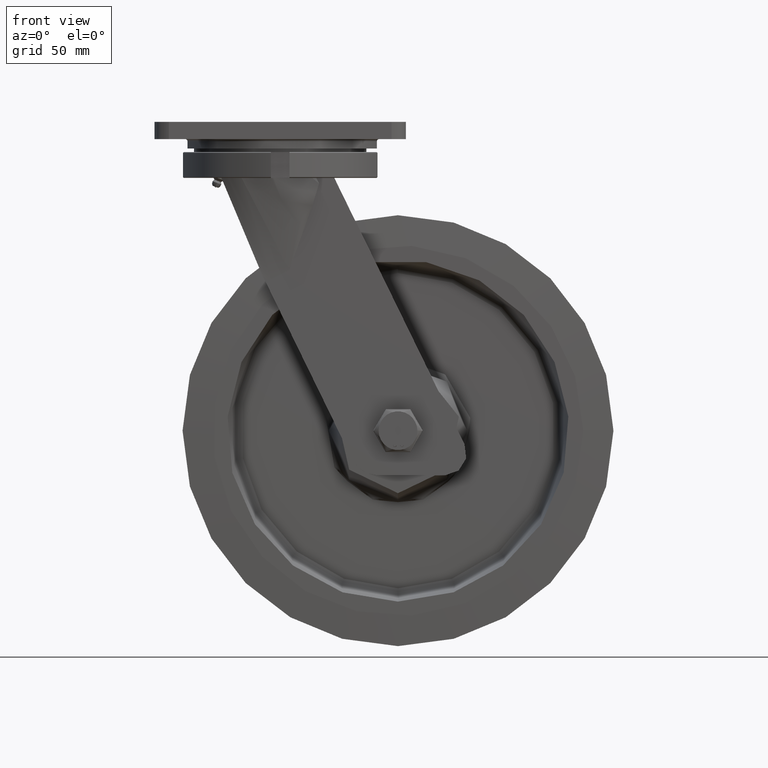
[diagram: clean part render]
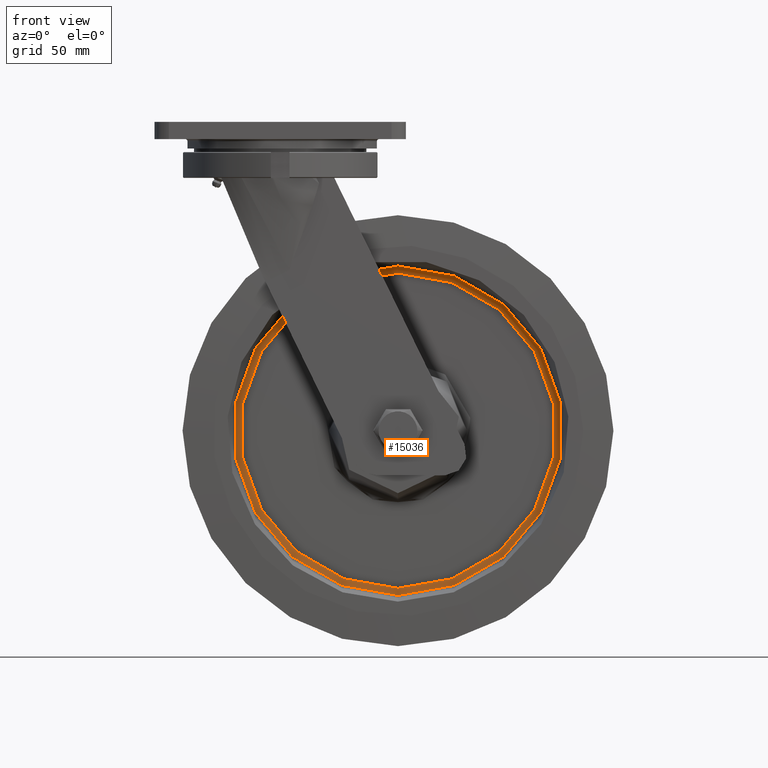
[diagram: same view with one face highlighted and labeled with its STEP entity id]
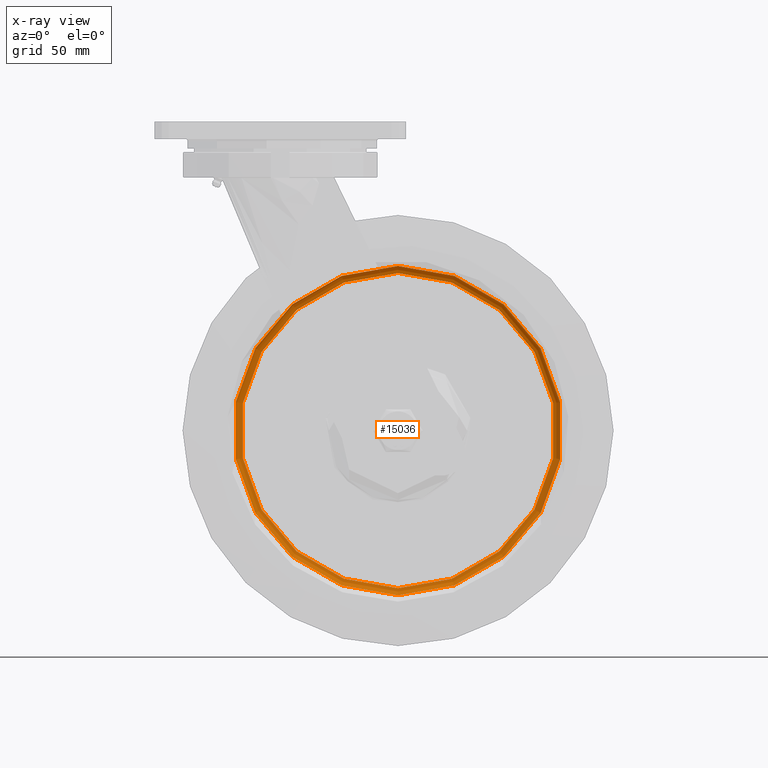
[diagram: x-ray of the same camera — body ghosted, the highlighted face saturated]
A machine part, front view. The second image highlights one B-rep face of the part: STEP entity #15036.
The next image is the same camera in x-ray: the body ghosted, the highlighted face saturated — about 0% of this face is hidden behind the body in this view.
In plain terms, the highlighted toroidal blend (fillet) surface has major radius 109.71 mm and minor (blend) radius 5 mm.
Its self-contained STEP definition (entity closure, byte-faithful):
#1010=TOROIDAL_SURFACE('',#16330,109.710405216167,4.99999999999999);
#1390=FACE_OUTER_BOUND('',#2309,.T.);
#2309=EDGE_LOOP('',(#11557,#11558,#11559,#11560,#11561));
#3172=CIRCLE('',#16331,109.710405216167);
#3173=CIRCLE('',#16332,4.99999999999999);
#3174=CIRCLE('',#16333,114.65226370442);
#3175=CIRCLE('',#16334,114.65226370442);
#6576=VERTEX_POINT('',#44139);
#6577=VERTEX_POINT('',#44141);
#6578=VERTEX_POINT('',#44143);
#8382=EDGE_CURVE('',#6576,#6576,#3172,.T.);
#8383=EDGE_CURVE('',#6576,#6577,#3173,.T.);
#8384=EDGE_CURVE('',#6577,#6578,#3174,.T.);
#8385=EDGE_CURVE('',#6578,#6577,#3175,.T.);
#11557=ORIENTED_EDGE('',*,*,#8382,.F.);
#11558=ORIENTED_EDGE('',*,*,#8383,.T.);
#11559=ORIENTED_EDGE('',*,*,#8384,.T.);
#11560=ORIENTED_EDGE('',*,*,#8385,.T.);
#11561=ORIENTED_EDGE('',*,*,#8383,.F.);
#15036=ADVANCED_FACE('',(#1390),#1010,.F.);
#16330=AXIS2_PLACEMENT_3D('',#44138,#18652,#18653);
#16331=AXIS2_PLACEMENT_3D('',#44140,#18654,#18655);
#16332=AXIS2_PLACEMENT_3D('',#44142,#18656,#18657);
#16333=AXIS2_PLACEMENT_3D('',#44144,#18658,#18659);
#16334=AXIS2_PLACEMENT_3D('',#44145,#18660,#18661);
#18652=DIRECTION('center_axis',(3.49148336110938E-15,-1.,0.));
#18653=DIRECTION('ref_axis',(0.,0.,-1.));
#18654=DIRECTION('center_axis',(3.49148336110938E-15,-1.,0.));
#18655=DIRECTION('ref_axis',(0.,0.,1.));
#18656=DIRECTION('center_axis',(1.,3.49148336110938E-15,1.22464679914735E-16));
#18657=DIRECTION('ref_axis',(-1.22464679914735E-16,0.,1.));
#18658=DIRECTION('center_axis',(3.49148336110938E-15,-1.,0.));
#18659=DIRECTION('ref_axis',(0.,0.,1.));
#18660=DIRECTION('center_axis',(3.49148336110938E-15,-1.,0.));
#18661=DIRECTION('ref_axis',(0.,0.,1.));
#44138=CARTESIAN_POINT('Origin',(4.18537275150012E-14,-10.,0.));
#44139=CARTESIAN_POINT('',(1.09606610513407E-14,-5.00000000000005,109.710405216167));
#44140=CARTESIAN_POINT('Origin',(2.43963107094543E-14,-5.00000000000005,
0.));
#44141=CARTESIAN_POINT('',(2.51583490951408E-14,-9.23971407873034,114.65226370442));
#44142=CARTESIAN_POINT('Origin',(2.84180778568874E-14,-10.,109.710405216167));
#44143=CARTESIAN_POINT('',(2.51583490951407E-14,-9.23971407873034,-114.65226370442));
#44144=CARTESIAN_POINT('Origin',(3.91992018712023E-14,-9.23971407873034,
0.));
#44145=CARTESIAN_POINT('Origin',(3.91992018712023E-14,-9.23971407873034,
0.));